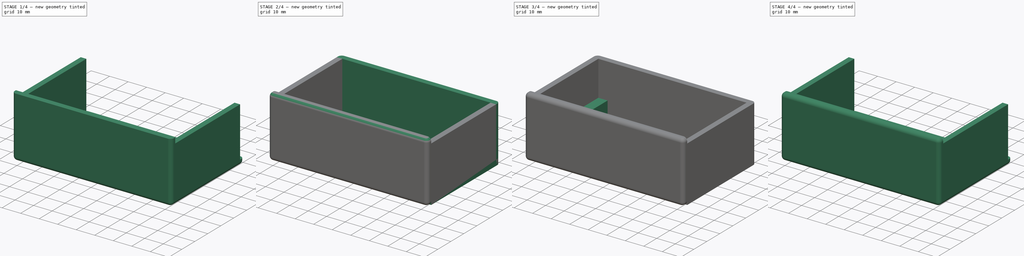
[diagram: build sequence overview — one tinted view per stage of 4, left to right]
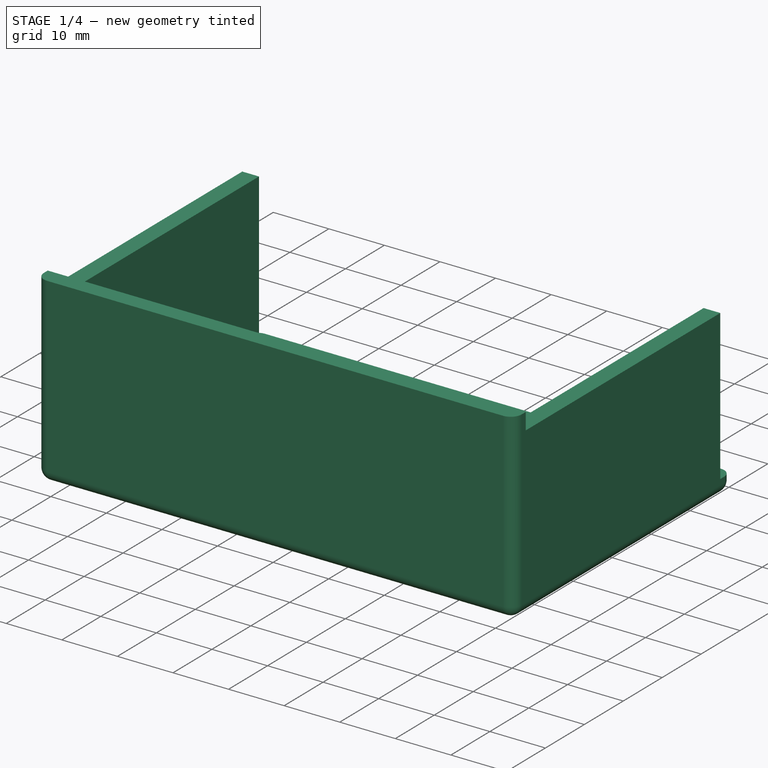
[diagram: stage 1 of 4 — iso view after this stage's code; geometry added in this stage tinted green]
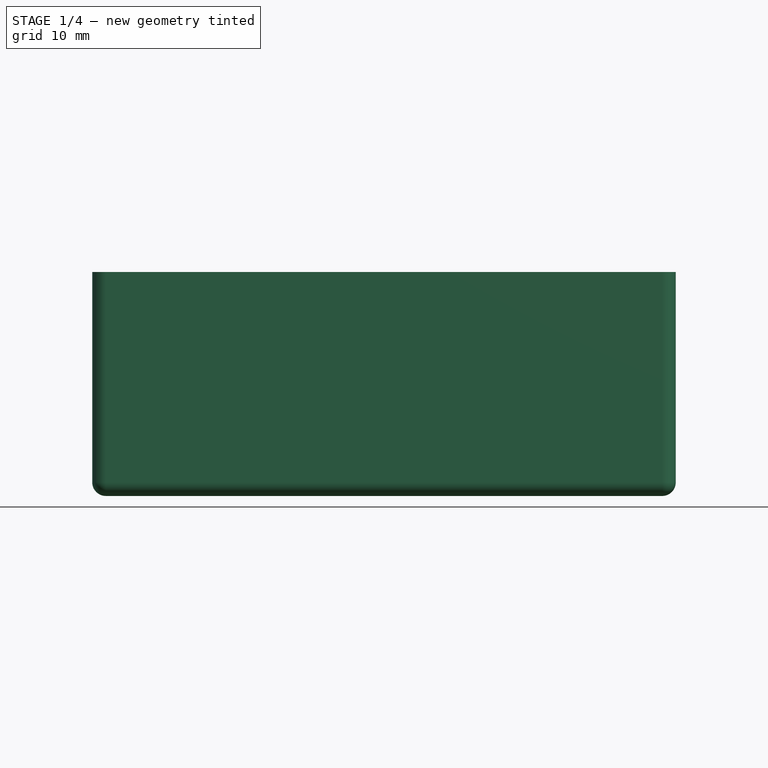
[diagram: stage 1 of 4 — front view after this stage's code; geometry added in this stage tinted green]
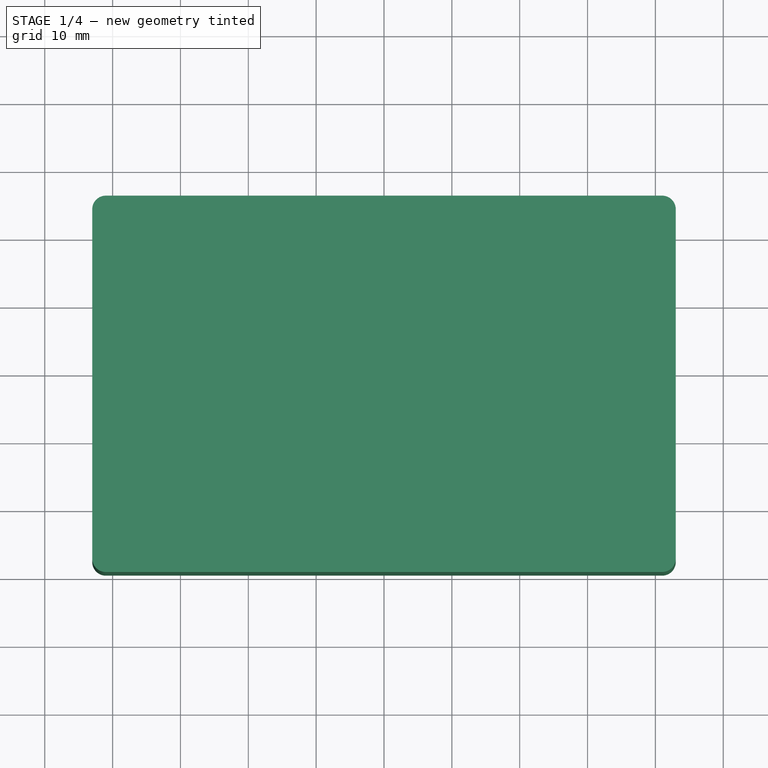
[diagram: stage 1 of 4 — top view after this stage's code; geometry added in this stage tinted green]
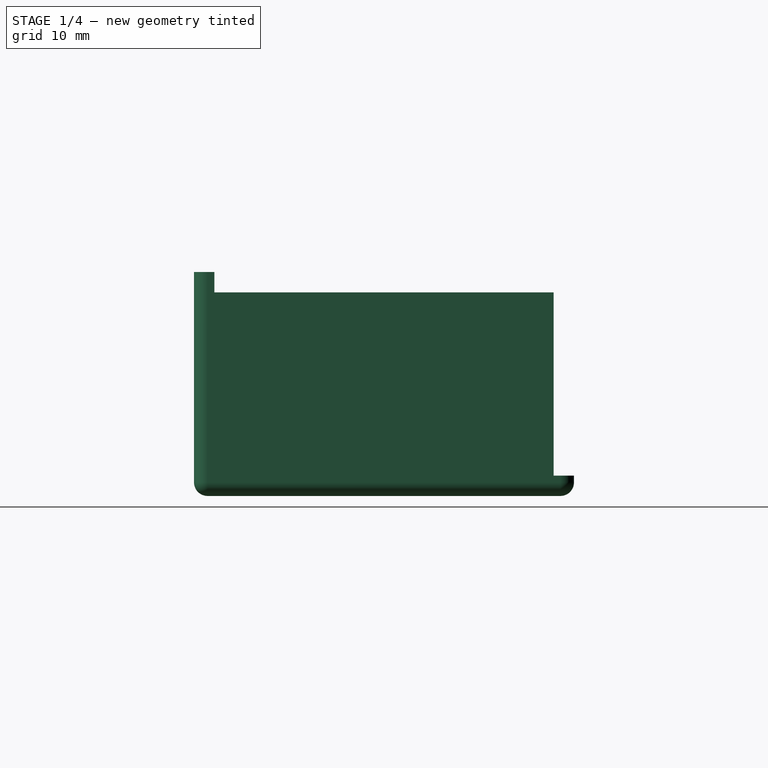
[diagram: stage 1 of 4 — right view after this stage's code; geometry added in this stage tinted green]
FCSTD DOCUMENT  (FreeCAD 0.21R33694 (Git))
Label: FCParametricEnclosure
License: All rights reserved
LicenseURL: https://en.wikipedia.org/wiki/All_rights_reserved
objects: Sketcher::SketchObject×11, PartDesign::Pad×8, PartDesign::Fillet×3, PartDesign::Pocket×2, PartDesign::Body×2, Spreadsheet::Sheet×1, PartDesign::Hole×1, PartDesign::SubShapeBinder×1
note: 42 computed .brp shape members not serialized (recipe doc carries the construction recipe); baked Part::Feature solids carry a one-line shape summary decoded from their .brp

FEATURE [PartDesign::Body] Body  label="Case Bottom"
  Group = -> [Sketch,Pad,Sketch001,Pad001,Sketch002,Pad002,Sketch004,Pad003,Sketch003,Pocket,Sketch005,Pad004,Sketch006,Hole,Fillet]
  Origin = -> Origin
  Tip = -> Fillet
FEATURE [Sketcher::SketchObject] Sketch007
  FullyConstrained = false
  MapMode = 5
  Support = -> [XY_Plane001]
  expr: Constraints[19] = Spreadsheet.case_radius
  expr: Constraints[20] = Spreadsheet.case_length
  expr: Constraints[21] = Spreadsheet.case_width + Spreadsheet.wall_thickness
  sketch-geometry (10):
    g0: ArcOfCircle CenterX=-41 CenterY=24.5 CenterZ=0 NormalX=0 NormalY=0 NormalZ=1 AngleXU=0 Radius=2 StartAngle=1.5708 EndAngle=3.14159
    g1: LineSegment StartX=-41 StartY=26.5 StartZ=0 EndX=41 EndY=26.5 EndZ=0
    g2: ArcOfCircle CenterX=41 CenterY=24.5 CenterZ=0 NormalX=0 NormalY=0 NormalZ=1 AngleXU=0 Radius=2 StartAngle=-4.4e-15 EndAngle=1.5708
    g3: LineSegment StartX=43 StartY=24.5 StartZ=0 EndX=43 EndY=-27.5 EndZ=0
    g4: ArcOfCircle CenterX=41 CenterY=-27.5 CenterZ=0 NormalX=0 NormalY=0 NormalZ=1 AngleXU=0 Radius=2 StartAngle=4.71239 EndAngle=6.28319
    g5: LineSegment StartX=41 StartY=-29.5 StartZ=0 EndX=-41 EndY=-29.5 EndZ=0
    g6: ArcOfCircle CenterX=-41 CenterY=-27.5 CenterZ=0 NormalX=0 NormalY=0 NormalZ=1 AngleXU=0 Radius=2 StartAngle=3.14159 EndAngle=4.71239
    g7: LineSegment StartX=-43 StartY=-27.5 StartZ=0 EndX=-43 EndY=24.5 EndZ=0
    g8: GeomPoint X=-43 Y=26.5 Z=0
    g9: GeomPoint X=43 Y=-29.5 Z=0
  constraints (22):
    c: Tangent(g0,g1) = 1.5708
    c: Tangent(g1,g2) = 1.5708
    c: Tangent(g2,g3) = 1.5708
    c: Tangent(g3,g4) = 1.5708
    c: Tangent(g4,g5) = 1.5708
    c: Tangent(g5,g6) = 1.5708
    c: Tangent(g6,g7) = 1.5708
    c: Tangent(g7,g0) = 1.5708
    c: Horizontal(g1)
    c: Horizontal(g5)
    c: Vertical(g3)
    c: Vertical(g7)
    c: Equal(g0,g2)
    c: Equal(g2,g4)
    c: Equal(g4,g6)
    c: PointOnObject(g8,g1)
    c: PointOnObject(g8,g7)
    c: PointOnObject(g9,g3)
    c: PointOnObject(g9,g5)
    c: Radius(g0) = 2
    c: DistanceX(g0,g2) = 86
    c: DistanceY(g4,g1) = 56
FEATURE [PartDesign::Pad] Pad005  label="Top Base"
  Direction = (0,0,1)
  Length = 3
  Length2 = 10
  Profile = -> Sketch007
  ReferenceAxis = -> Sketch007 [N_Axis]
  Type = 0
  expr: Length = Spreadsheet.wall_thickness
FEATURE [Sketcher::SketchObject] Sketch008
  ExternalGeometry = -> [Pad005]
  FullyConstrained = true
  MapMode = 5
  Placement = pos=(0,0,3) rot=(0,0,1;0rad)
  Support = -> [Pad005]
  expr: Constraints[14] = Spreadsheet.wall_thickness
  sketch-geometry (6):
    g0: LineSegment StartX=-43 StartY=-26.5 StartZ=0 EndX=43 EndY=-26.5 EndZ=0
    g1: LineSegment StartX=43 StartY=-26.5 StartZ=0 EndX=43 EndY=-27.5 EndZ=0
    g2: LineSegment StartX=41 StartY=-29.5 StartZ=0 EndX=-41 EndY=-29.5 EndZ=0
    g3: LineSegment StartX=-43 StartY=-27.5 StartZ=0 EndX=-43 EndY=-26.5 EndZ=0
    g4: ArcOfCircle CenterX=-41 CenterY=-27.5 CenterZ=0 NormalX=0 NormalY=0 NormalZ=1 AngleXU=0 Radius=2 StartAngle=3.14159 EndAngle=4.71239
    g5: ArcOfCircle CenterX=41 CenterY=-27.5 CenterZ=0 NormalX=0 NormalY=0 NormalZ=1 AngleXU=0 Radius=2 StartAngle=4.71239 EndAngle=6.28319
  constraints (15):
    c: Coincident(g0,g1)
    c: Coincident(g3,g0)
    c: Horizontal(g0)
    c: Horizontal(g2)
    c: Vertical(g1)
    c: Vertical(g3)
    c: Tangent(g3,g4) = 1.5708
    c: Tangent(g2,g4) = 1.5708
    c: Tangent(g1,g5) = 1.5708
    c: Tangent(g2,g5) = 1.5708
    c: Equal(g5,g4)
    c: Coincident(g2,g-6)
    c: PointOnObject(g0,g-5)
    c: PointOnObject(g0,g-7)
    c: Distance(g2,g0) = 3
FEATURE [PartDesign::Pad] Pad006  label="Rear Panel"
  BaseFeature = -> Pad005
  Direction = (0,0,1)
  Length = 30
  Length2 = 10
  Profile = -> Sketch008
  ReferenceAxis = -> Sketch008 [N_Axis]
  Type = 0
  expr: Length = Spreadsheet.case_height
FEATURE [Sketcher::SketchObject] Sketch009
  ExternalGeometry = -> [Pad006]
  FullyConstrained = true
  MapMode = 5
  Placement = pos=(0,0,3) rot=(0,0,1;0rad)
  Support = -> [Pad006]
  expr: Constraints[16] = Spreadsheet.wall_thickness
  expr: Constraints[17] = Spreadsheet.wall_thickness
  expr: Constraints[18] = Spreadsheet.board_width
  expr: Constraints[19] = Spreadsheet.board_width
  sketch-geometry (8):
    g0: LineSegment StartX=40 StartY=23.5 StartZ=0 EndX=43 EndY=23.5 EndZ=0
    g1: LineSegment StartX=43 StartY=23.5 StartZ=0 EndX=43 EndY=-26.5 EndZ=0
    g2: LineSegment StartX=43 StartY=-26.5 StartZ=0 EndX=40 EndY=-26.5 EndZ=0
    g3: LineSegment StartX=40 StartY=-26.5 StartZ=0 EndX=40 EndY=23.5 EndZ=0
    g4: LineSegment StartX=-43 StartY=23.5 StartZ=0 EndX=-40 EndY=23.5 EndZ=0
    g5: LineSegment StartX=-40 StartY=23.5 StartZ=0 EndX=-40 EndY=-26.5 EndZ=0
    g6: LineSegment StartX=-40 StartY=-26.5 StartZ=0 EndX=-43 EndY=-26.5 EndZ=0
    g7: LineSegment StartX=-43 StartY=-26.5 StartZ=0 EndX=-43 EndY=23.5 EndZ=0
  constraints (22):
    c: Coincident(g0,g1)
    c: Coincident(g1,g2)
    c: Coincident(g2,g3)
    c: Coincident(g3,g0)
    c: Horizontal(g0)
    c: Horizontal(g2)
    c: Vertical(g1)
    c: Vertical(g3)
    c: Coincident(g4,g5)
    c: Coincident(g5,g6)
    c: Coincident(g6,g7)
    c: Coincident(g7,g4)
    c: Horizontal(g4)
    c: Horizontal(g6)
    c: Vertical(g5)
    c: Vertical(g7)
    c: DistanceX(g6,g5) = 3
    c: DistanceX(g2,g1) = 3
    c: DistanceY(g2,g0) = 50
    c: DistanceY(g5,g4) = 50
    c: Coincident(g1,g-3)
    c: Coincident(g6,g-4)
FEATURE [PartDesign::Pad] Pad007  label="Side Walls"
  BaseFeature = -> Pad006
  Direction = (0,0,1)
  Length = 27
  Length2 = 10
  Profile = -> Sketch009
  ReferenceAxis = -> Sketch009 [N_Axis]
  Type = 0
  expr: Length = Spreadsheet.case_height - Spreadsheet.wall_thickness
FEATURE [PartDesign::Fillet] Fillet001
  Base = -> Pad007 [Face4]
  BaseFeature = -> Pad007
  Radius = 2
  SupportTransform = false
  UseAllEdges = false
  expr: Radius = Spreadsheet.case_fillet_radius
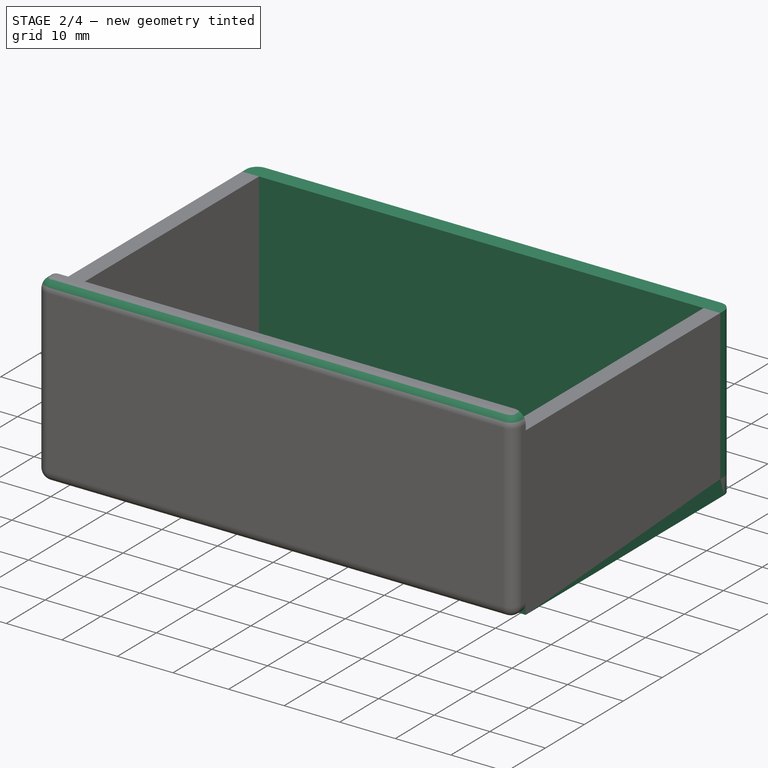
[diagram: stage 2 of 4 — iso view after this stage's code; geometry added in this stage tinted green]
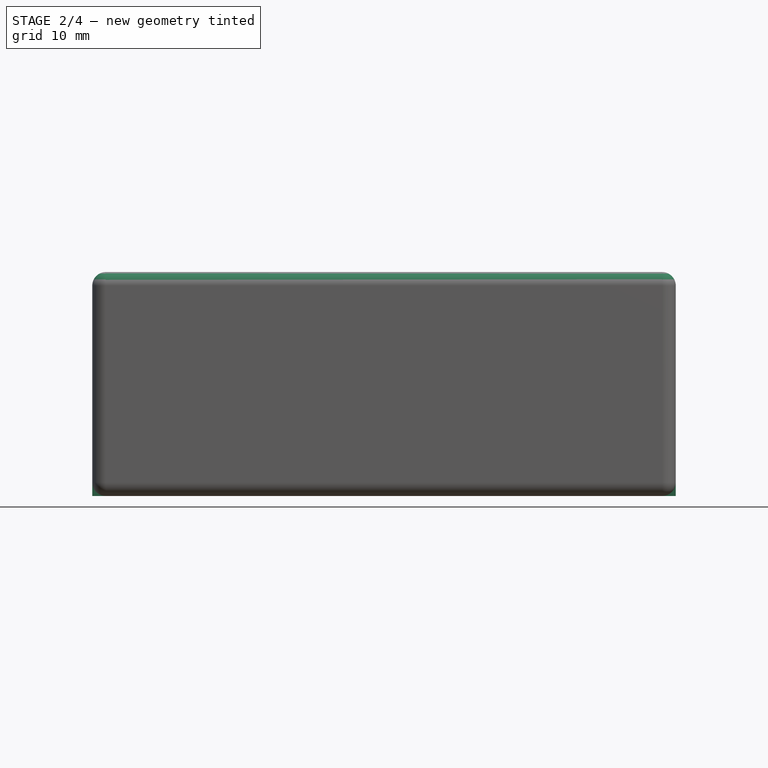
[diagram: stage 2 of 4 — front view after this stage's code; geometry added in this stage tinted green]
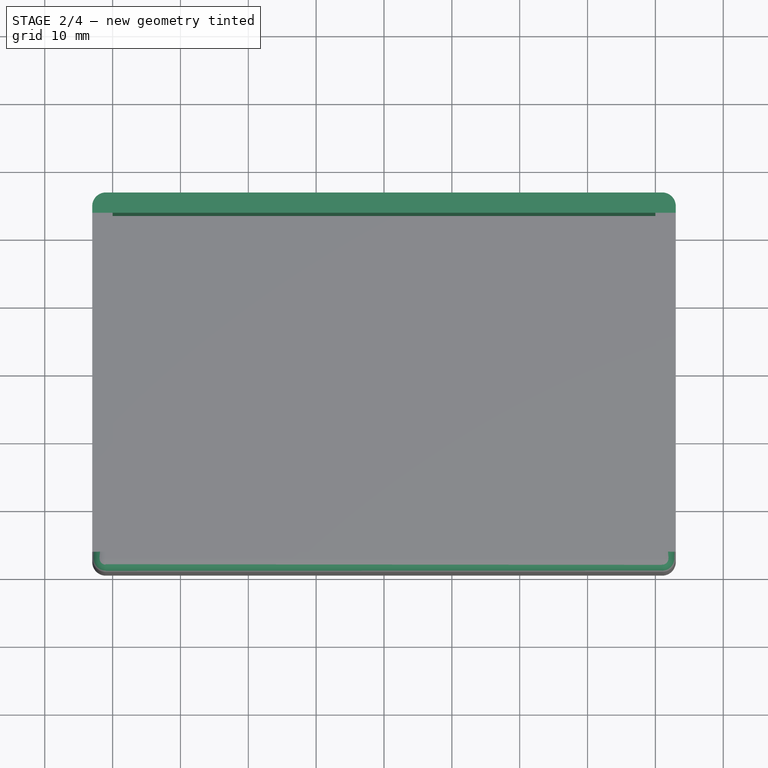
[diagram: stage 2 of 4 — top view after this stage's code; geometry added in this stage tinted green]
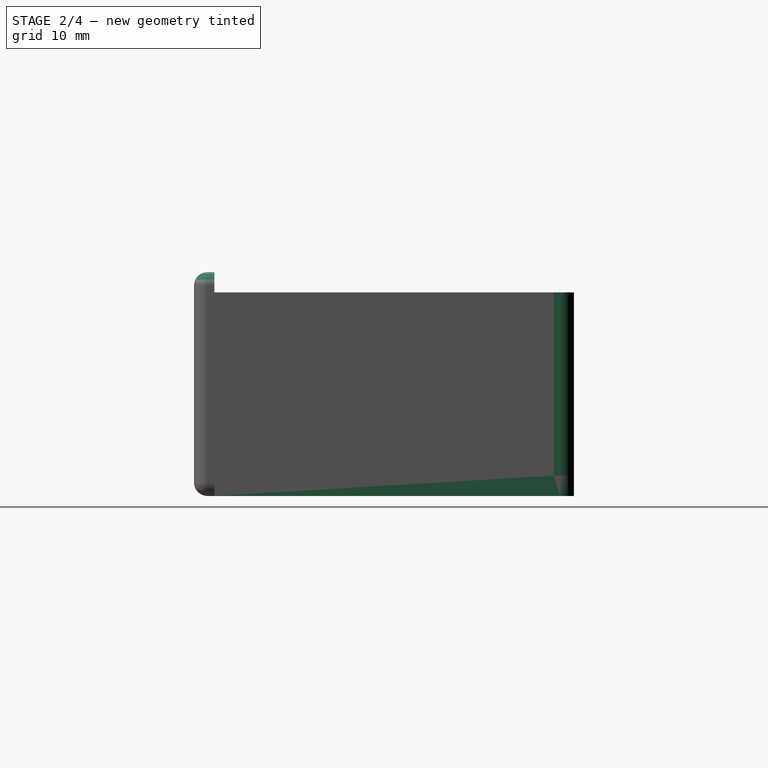
[diagram: stage 2 of 4 — right view after this stage's code; geometry added in this stage tinted green]
FEATURE [Sketcher::SketchObject] Sketch
  FullyConstrained = true
  MapMode = 5
  Support = -> [XY_Plane]
  expr: Constraints[10] = Spreadsheet.case_width
  expr: Constraints[24] = Spreadsheet.case_radius
  expr: Constraints[9] = Spreadsheet.case_length
  sketch-geometry (11):
    g0: LineSegment StartX=-43 StartY=26.5 StartZ=0 EndX=43 EndY=26.5 EndZ=0
    g1: LineSegment StartX=43 StartY=26.5 StartZ=0 EndX=43 EndY=-26.5 EndZ=0
    g2: LineSegment StartX=43 StartY=-26.5 StartZ=0 EndX=-43 EndY=-26.5 EndZ=0
    g3: LineSegment StartX=-43 StartY=-26.5 StartZ=0 EndX=-43 EndY=26.5 EndZ=0
    g4: ArcOfCircle CenterX=-41 CenterY=24.5 CenterZ=0 NormalX=0 NormalY=0 NormalZ=1 AngleXU=0 Radius=2 StartAngle=1.5708 EndAngle=3.14159
    g5: LineSegment StartX=-41 StartY=26.5 StartZ=0 EndX=41 EndY=26.5 EndZ=0
    g6: ArcOfCircle CenterX=41 CenterY=24.5 CenterZ=0 NormalX=0 NormalY=0 NormalZ=1 AngleXU=0 Radius=2 StartAngle=-1.35021e-11 EndAngle=1.5708
    g7: LineSegment StartX=43 StartY=24.5 StartZ=0 EndX=43 EndY=-26.5 EndZ=0
    g8: LineSegment StartX=43 StartY=-26.5 StartZ=0 EndX=-43 EndY=-26.5 EndZ=0
    g9: LineSegment StartX=-43 StartY=-26.5 StartZ=0 EndX=-43 EndY=24.5 EndZ=0
    g10: GeomPoint X=-43 Y=26.5 Z=0
  constraints (28):
    c: Coincident(g0,g1)
    c: Coincident(g1,g2)
    c: Coincident(g2,g3)
    c: Coincident(g3,g0)
    c: Horizontal(g0)
    c: Horizontal(g2)
    c: Vertical(g1)
    c: Vertical(g3)
    c: Symmetric(g2,g0,g-1)
    c: DistanceX(g0,g0) = 86
    c: DistanceY(g2,g0) = 53
    c: Tangent(g4,g5) = 1.5708
    c: Tangent(g5,g6) = 1.5708
    c: Tangent(g6,g7) = 1.5708
    c: Tangent(g9,g4) = 1.5708
    c: Horizontal(g5)
    c: Horizontal(g8)
    c: Vertical(g7)
    c: Vertical(g9)
    c: Equal(g4,g6)
    c: PointOnObject(g10,g5)
    c: PointOnObject(g10,g9)
    c: Coincident(g7,g8)
    c: Coincident(g8,g9)
    c: Radius(g6) = 2
    c: Coincident(g8,g2)
    c: PointOnObject(g5,g0)
    c: PointOnObject(g7,g1)
FEATURE [Spreadsheet::Sheet] Spreadsheet
  cells = A1='board_length; B1(board_length)=70; A2='board_width; B2(board_width)=50; A3='case_height; B3(case_height)=30; A4='wall_thickness; B4(wall_thickness)=3; A5='board_mount_inset; B5(board_mount_inset)=5; A6='case_radius; B6(case_radius)=2; A7='mount_hole_diameter; B7(mount_hole_diameter)=4; A8='mount_hole_depth; B8(mount_hole_depth)=5; A9='case_hole_diameter; B9(case_hole_diameter)=4; A10='case_hole_depth; B10(case_hole_depth)=5; A11='mount_stud_height; B11(mount_stud_height)=8; A12='case_clearance_hole; B12(case_clearance_hole)=3.5; A14='case_length; B14(case_length)==board_length + (wall_thickness + case_lip_thickness) * 2; A15='case_width; B15(case_width)==board_width + wall_thickness; A16='case_lip_height; B16(case_lip_height)==case_hole_diameter + 4; A17='case_lip_thickness; B17(case_lip_thickness)==case_hole_depth; A18='mount_stud_diameter; B18(mount_stud_diameter)==mount_hole_diameter + 3; A19='case_fillet_radius; B19(case_fillet_radius)==case_radius
FEATURE [PartDesign::Pad] Pad  label="Bottom Base"
  Direction = (0,0,1)
  Length = 3
  Length2 = 10
  Profile = -> Sketch
  ReferenceAxis = -> Sketch [N_Axis]
  Type = 0
  expr: Length = Spreadsheet.wall_thickness
FEATURE [Sketcher::SketchObject] Sketch001
  ExternalGeometry = -> [Pad]
  FullyConstrained = true
  MapMode = 5
  Placement = pos=(0,0,3) rot=(0,0,1;0rad)
  Support = -> [Pad]
  expr: Constraints[13] = Spreadsheet.case_radius
  expr: Constraints[15] = Spreadsheet.wall_thickness
  sketch-geometry (6):
    g0: LineSegment StartX=-41 StartY=26.5 StartZ=0 EndX=41 EndY=26.5 EndZ=0
    g1: LineSegment StartX=43 StartY=24.5 StartZ=0 EndX=43 EndY=23.5 EndZ=0
    g2: LineSegment StartX=43 StartY=23.5 StartZ=0 EndX=-43 EndY=23.5 EndZ=0
    g3: LineSegment StartX=-43 StartY=23.5 StartZ=0 EndX=-43 EndY=24.5 EndZ=0
    g4: ArcOfCircle CenterX=-41 CenterY=24.5 CenterZ=0 NormalX=0 NormalY=0 NormalZ=1 AngleXU=0 Radius=2 StartAngle=1.5708 EndAngle=3.14159
    g5: ArcOfCircle CenterX=41 CenterY=24.5 CenterZ=0 NormalX=0 NormalY=0 NormalZ=1 AngleXU=0 Radius=2 StartAngle=1.4e-15 EndAngle=1.5708
  constraints (16):
    c: Coincident(g1,g2)
    c: Coincident(g2,g3)
    c: Horizontal(g0)
    c: Horizontal(g2)
    c: Vertical(g1)
    c: Vertical(g3)
    c: Tangent(g3,g4) = 1.5708
    c: Tangent(g0,g4) = 1.5708
    c: Tangent(g1,g5) = 1.5708
    c: Tangent(g0,g5) = 1.5708
    c: PointOnObject(g2,g-5)
    c: PointOnObject(g1,g-7)
    c: Equal(g4,g5)
    c: Radius(g5) = 2
    c: PointOnObject(g0,g-3)
    c: DistanceY(g1,g0) = 3
FEATURE [PartDesign::Pad] Pad001  label="Front Panel"
  BaseFeature = -> Pad
  Direction = (0,0,1)
  Length = 27
  Length2 = 10
  Profile = -> Sketch001
  ReferenceAxis = -> Sketch001 [N_Axis]
  Type = 0
  expr: Length = Spreadsheet.case_height - Spreadsheet.wall_thickness
FEATURE [PartDesign::SubShapeBinder] Binder
  BindCopyOnChange = 0
  BindMode = 0
  ClaimChildren = false
  Context = -> Body001 [Binder.]
  Fuse = false
  MakeFace = true
  OffsetFill = false
  OffsetIntersection = false
  OffsetJoinType = 0
  OffsetOpenResult = false
  PartialLoad = false
  Relative = true
  Support = -> [Body[Fillet.]]
  _Version = 2
FEATURE [PartDesign::Fillet] Fillet002
  Base = -> Fillet001 [Edge68,Edge69,Edge70,Edge71,Edge53]
  BaseFeature = -> Fillet001
  Radius = 2
  SupportTransform = false
  UseAllEdges = false
  expr: Radius = Spreadsheet.case_fillet_radius
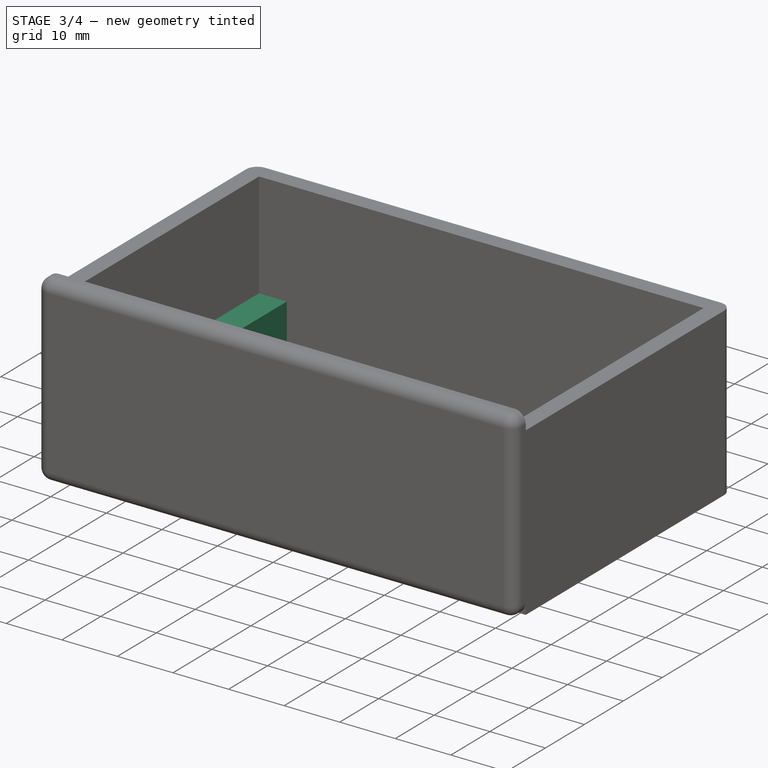
[diagram: stage 3 of 4 — iso view after this stage's code; geometry added in this stage tinted green]
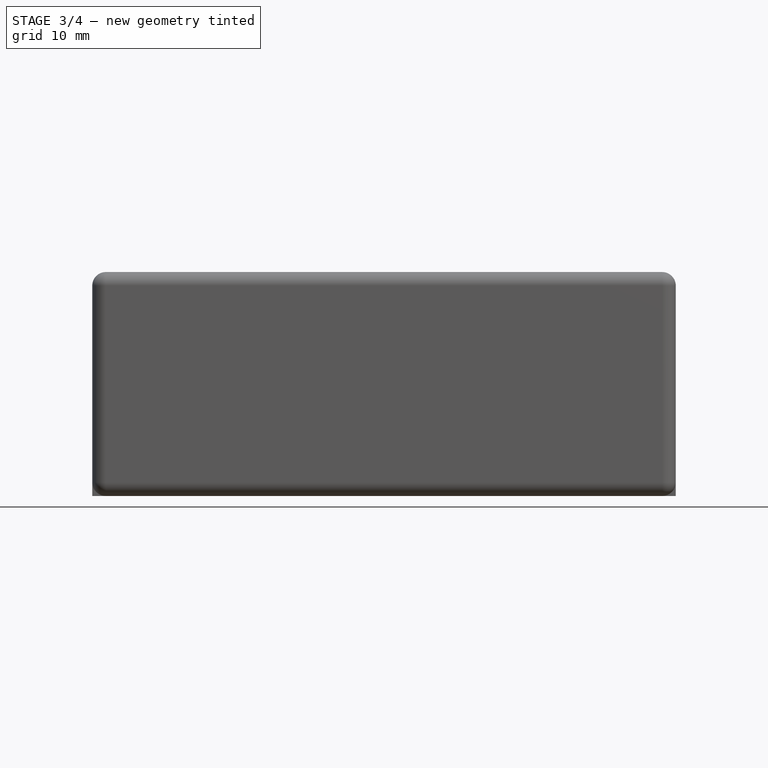
[diagram: stage 3 of 4 — front view after this stage's code; geometry added in this stage tinted green]
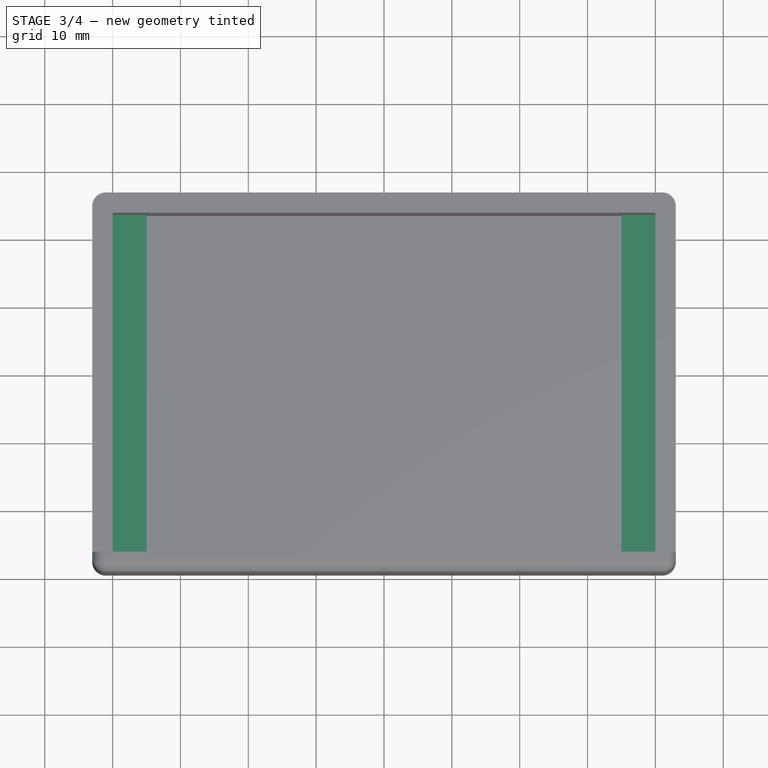
[diagram: stage 3 of 4 — top view after this stage's code; geometry added in this stage tinted green]
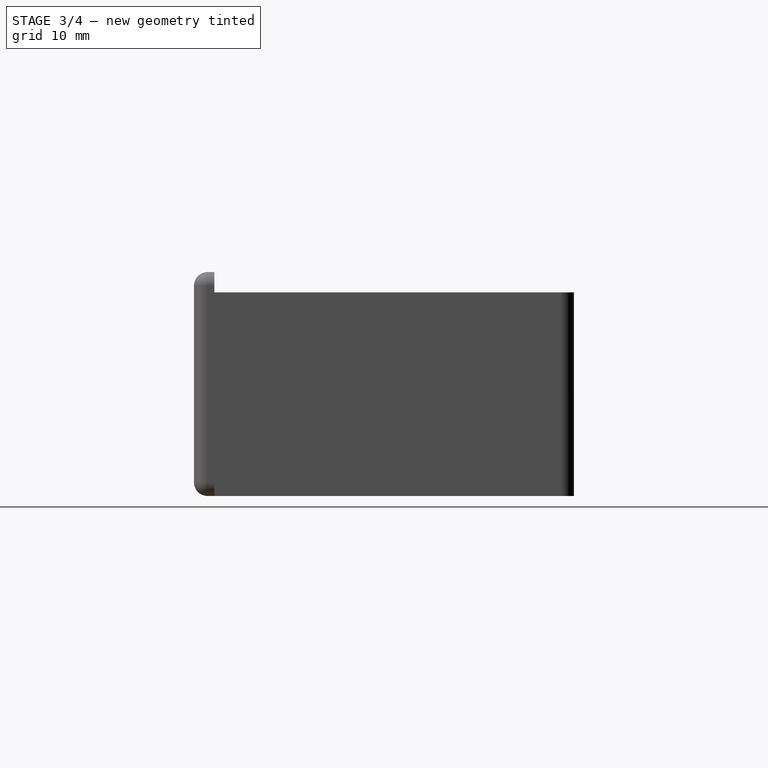
[diagram: stage 3 of 4 — right view after this stage's code; geometry added in this stage tinted green]
FEATURE [Sketcher::SketchObject] Sketch002
  ExternalGeometry = -> [Pad001]
  FullyConstrained = true
  MapMode = 5
  Placement = pos=(0,0,3) rot=(0,0,1;0rad)
  Support = -> [Pad001]
  expr: Constraints[10] = Spreadsheet.wall_thickness
  expr: Constraints[11] = Spreadsheet.case_width - Spreadsheet.wall_thickness
  expr: Constraints[9] = Spreadsheet.case_lip_thickness
  sketch-geometry (4):
    g0: LineSegment StartX=-40 StartY=-26.5 StartZ=0 EndX=-35 EndY=-26.5 EndZ=0
    g1: LineSegment StartX=-35 StartY=-26.5 StartZ=0 EndX=-35 EndY=23.5 EndZ=0
    g2: LineSegment StartX=-35 StartY=23.5 StartZ=0 EndX=-40 EndY=23.5 EndZ=0
    g3: LineSegment StartX=-40 StartY=23.5 StartZ=0 EndX=-40 EndY=-26.5 EndZ=0
  constraints (12):
    c: Coincident(g0,g1)
    c: Coincident(g1,g2)
    c: Coincident(g2,g3)
    c: Coincident(g3,g0)
    c: Horizontal(g0)
    c: Horizontal(g2)
    c: Vertical(g1)
    c: Vertical(g3)
    c: PointOnObject(g0,g-3)
    c: DistanceX(g0,g0) = 5
    c: DistanceX(g-4,g0) = 3
    c: DistanceY(g0,g2) = 50
FEATURE [PartDesign::Pad] Pad002  label="Right Case Lip"
  BaseFeature = -> Pad001
  Direction = (0,0,1)
  Length = 8
  Length2 = 10
  Profile = -> Sketch002
  ReferenceAxis = -> Sketch002 [N_Axis]
  Type = 0
  expr: Length = Spreadsheet.case_lip_height
FEATURE [Sketcher::SketchObject] Sketch003
  ExternalGeometry = -> [Pad002]
  FullyConstrained = true
  MapMode = 5
  Placement = pos=(-40,0,0) rot=(0.57735,-0.57735,-0.57735;2.0944rad)
  Support = -> [Pad002]
  expr: Constraints[1] = Spreadsheet.mount_hole_diameter
  expr: Constraints[2] = Spreadsheet.case_lip_height / 2
  sketch-geometry (1):
    g0: Circle CenterX=0 CenterY=7 CenterZ=0 NormalX=0 NormalY=0 NormalZ=1 AngleXU=0 Radius=2
  constraints (3):
    c: PointOnObject(g0,g-2)
    c: Diameter(g0) = 4
    c: Distance(g0,g-3) = 4
FEATURE [Sketcher::SketchObject] Sketch004
  ExternalGeometry = -> [Pad002]
  FullyConstrained = true
  MapMode = 5
  Placement = pos=(0,0,3) rot=(0,0,1;0rad)
  Support = -> [Pad002]
  expr: Constraints[10] = Spreadsheet.wall_thickness
  expr: Constraints[11] = Spreadsheet.case_width - Spreadsheet.wall_thickness
  expr: Constraints[9] = Spreadsheet.case_lip_thickness
  sketch-geometry (4):
    g0: LineSegment StartX=35 StartY=-26.5 StartZ=0 EndX=40 EndY=-26.5 EndZ=0
    g1: LineSegment StartX=40 StartY=-26.5 StartZ=0 EndX=40 EndY=23.5 EndZ=0
    g2: LineSegment StartX=40 StartY=23.5 StartZ=0 EndX=35 EndY=23.5 EndZ=0
    g3: LineSegment StartX=35 StartY=23.5 StartZ=0 EndX=35 EndY=-26.5 EndZ=0
  constraints (12):
    c: Coincident(g0,g1)
    c: Coincident(g1,g2)
    c: Coincident(g2,g3)
    c: Coincident(g3,g0)
    c: Horizontal(g0)
    c: Horizontal(g2)
    c: Vertical(g1)
    c: Vertical(g3)
    c: PointOnObject(g0,g-3)
    c: DistanceX(g0,g0) = 5
    c: DistanceX(g0,g-4) = 3
    c: DistanceY(g0,g2) = 50
FEATURE [PartDesign::Pad] Pad003  label="Left Case Lip"
  BaseFeature = -> Pad002
  Direction = (0,0,1)
  Length = 8
  Length2 = 10
  Profile = -> Sketch004
  ReferenceAxis = -> Sketch004 [N_Axis]
  Type = 0
  expr: Length = Spreadsheet.case_lip_height
FEATURE [PartDesign::Pocket] Pocket  label="Case Mount Holes"
  BaseFeature = -> Pad003
  Direction = (1,0,0)
  Length = 5
  Length2 = 5
  Profile = -> Sketch003
  ReferenceAxis = -> Sketch003 [N_Axis]
  Type = 1
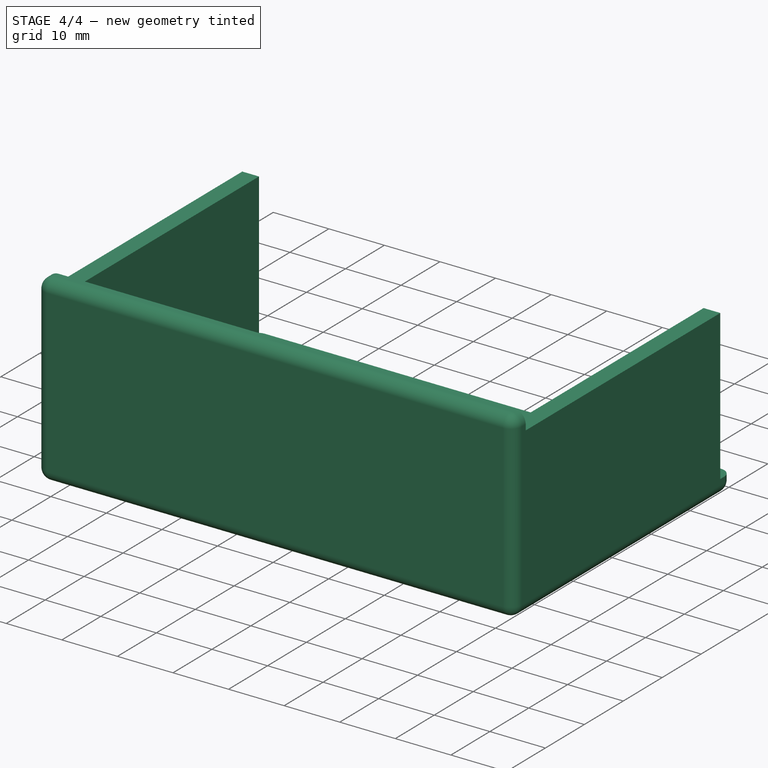
[diagram: stage 4 of 4 — iso view after this stage's code; geometry added in this stage tinted green]
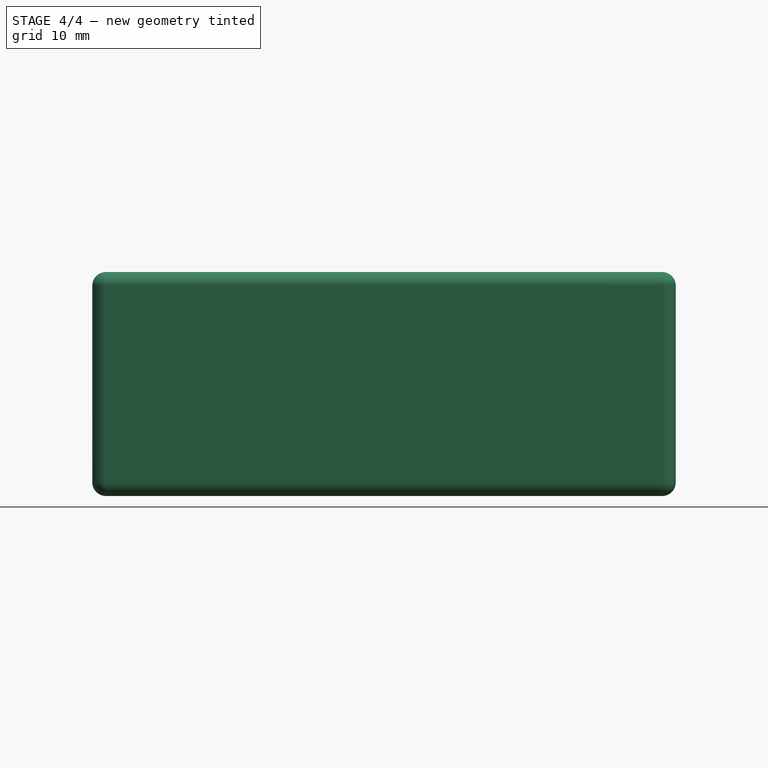
[diagram: stage 4 of 4 — front view after this stage's code; geometry added in this stage tinted green]
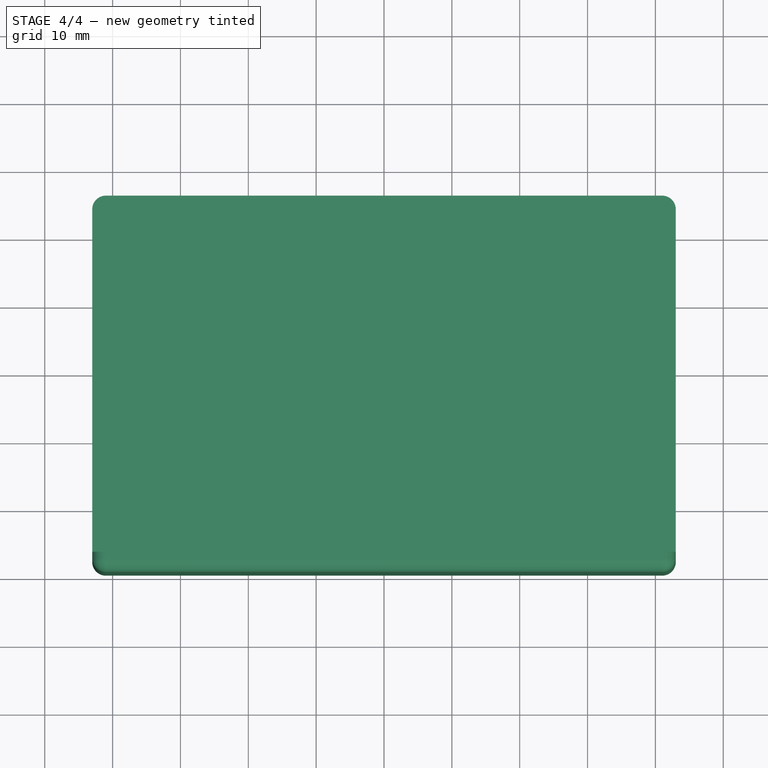
[diagram: stage 4 of 4 — top view after this stage's code; geometry added in this stage tinted green]
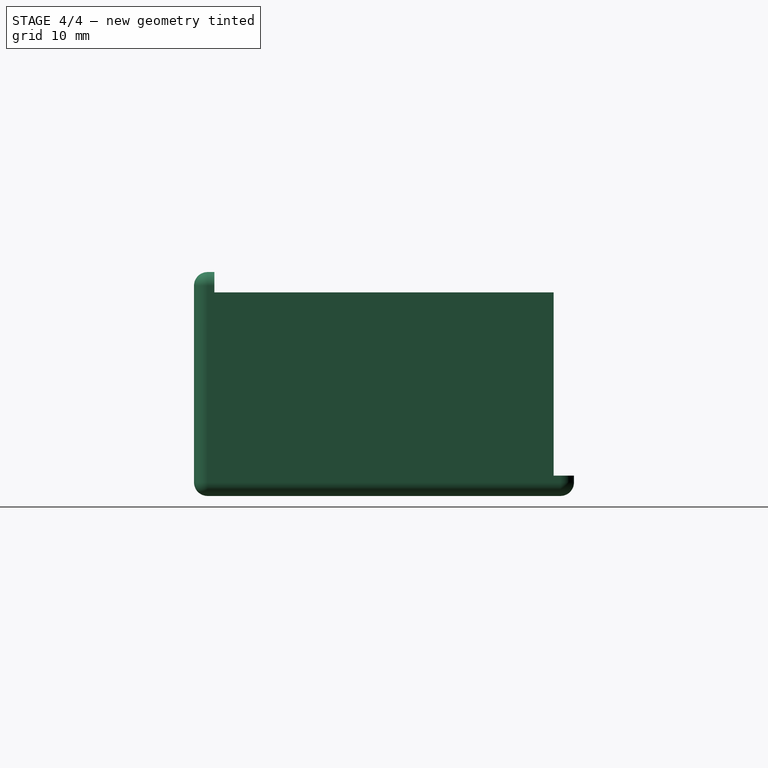
[diagram: stage 4 of 4 — right view after this stage's code; geometry added in this stage tinted green]
FEATURE [Sketcher::SketchObject] Sketch005
  ExternalGeometry = -> [Pocket]
  FullyConstrained = true
  MapMode = 5
  Placement = pos=(0,0,3) rot=(0,0,1;0rad)
  Support = -> [Pocket]
  expr: Constraints[0] = Spreadsheet.wall_thickness + Spreadsheet.case_lip_thickness + Spreadsheet.board_mount_inset
  expr: Constraints[11] = Spreadsheet.mount_stud_diameter
  expr: Constraints[1] = Spreadsheet.wall_thickness + Spreadsheet.case_lip_thickness + Spreadsheet.board_mount_inset
  expr: Constraints[2] = Spreadsheet.wall_thickness + Spreadsheet.case_lip_thickness + Spreadsheet.board_mount_inset
  expr: Constraints[3] = Spreadsheet.wall_thickness + Spreadsheet.case_lip_thickness + Spreadsheet.board_mount_inset
  expr: Constraints[4] = Spreadsheet.wall_thickness + Spreadsheet.board_mount_inset
  expr: Constraints[5] = Spreadsheet.wall_thickness + Spreadsheet.board_mount_inset
  expr: Constraints[6] = Spreadsheet.board_mount_inset
  expr: Constraints[7] = Spreadsheet.board_mount_inset
  sketch-geometry (4):
    g0: Circle CenterX=-30 CenterY=18.5 CenterZ=0 NormalX=0 NormalY=0 NormalZ=1 AngleXU=0 Radius=3.5
    g1: Circle CenterX=30 CenterY=18.5 CenterZ=0 NormalX=0 NormalY=0 NormalZ=1 AngleXU=0 Radius=3.5
    g2: Circle CenterX=-30 CenterY=-21.5 CenterZ=0 NormalX=0 NormalY=0 NormalZ=1 AngleXU=0 Radius=3.5
    g3: Circle CenterX=30 CenterY=-21.5 CenterZ=0 NormalX=0 NormalY=0 NormalZ=1 AngleXU=0 Radius=3.5
  constraints (12):
    c: Distance(g0,g-4) = 13
    c: Distance(g1,g-6) = 13
    c: Distance(g3,g-6) = 13
    c: Distance(g2,g-4) = 13
    c: Distance(g0,g-3) = 8
    c: Distance(g1,g-3) = 8
    c: Distance(g2,g-5) = 5
    c: Distance(g3,g-5) = 5
    c: Equal(g0,g1)
    c: Equal(g1,g3)
    c: Equal(g3,g2)
    c: Diameter(g0) = 7
FEATURE [PartDesign::Pad] Pad004  label="Board Mount Studs"
  BaseFeature = -> Pocket
  Direction = (0,0,1)
  Length = 8
  Length2 = 10
  Profile = -> Sketch005
  ReferenceAxis = -> Sketch005 [N_Axis]
  Type = 0
  expr: Length = Spreadsheet.mount_stud_height
FEATURE [Sketcher::SketchObject] Sketch006
  ExternalGeometry = -> [Pad004]
  FullyConstrained = true
  MapMode = 5
  Placement = pos=(0,0,11) rot=(0,0,1;0rad)
  Support = -> [Pad004]
  expr: Constraints[7] = Spreadsheet.mount_hole_diameter
  sketch-geometry (4):
    g0: Circle CenterX=-30 CenterY=18.5 CenterZ=0 NormalX=0 NormalY=0 NormalZ=1 AngleXU=0 Radius=2
    g1: Circle CenterX=-30 CenterY=-21.5 CenterZ=0 NormalX=0 NormalY=0 NormalZ=1 AngleXU=0 Radius=2
    g2: Circle CenterX=30 CenterY=-21.5 CenterZ=0 NormalX=0 NormalY=0 NormalZ=1 AngleXU=0 Radius=2
    g3: Circle CenterX=30 CenterY=18.5 CenterZ=0 NormalX=0 NormalY=0 NormalZ=1 AngleXU=0 Radius=2
  constraints (8):
    c: Coincident(g0,g-3)
    c: Coincident(g1,g-4)
    c: Coincident(g2,g-5)
    c: Coincident(g3,g-6)
    c: Equal(g0,g3)
    c: Equal(g3,g2)
    c: Equal(g2,g1)
    c: Diameter(g0) = 4
FEATURE [PartDesign::Hole] Hole  label="Board Mount Holes"
  BaseFeature = -> Pad004
  CustomThreadClearance = 0
  Depth = 5
  DepthType = 0
  Diameter = 4
  DrillForDepth = false
  DrillPoint = 1
  DrillPointAngle = 118
  HoleCutCountersinkAngle = 90
  HoleCutCustomValues = false
  HoleCutDepth = 0
  HoleCutDiameter = 6.1
  HoleCutType = 0
  ModelThread = false
  Profile = -> Sketch006
  Tapered = false
  TaperedAngle = 90
  ThreadClass = 0
  ThreadDepth = 5
  ThreadDepthType = 0
  ThreadDirection = 0
  ThreadFit = 0
  ThreadSize = 0
  ThreadType = 0
  Threaded = false
  UseCustomThreadClearance = false
  expr: Depth = Spreadsheet.mount_hole_depth
  expr: Diameter = Spreadsheet.mount_hole_diameter
FEATURE [PartDesign::Fillet] Fillet
  Base = -> Hole [Edge13,Edge14,Edge6,Edge3,Edge9]
  BaseFeature = -> Hole
  Radius = 2
  SupportTransform = false
  UseAllEdges = false
  expr: Radius = Spreadsheet.case_fillet_radius
FEATURE [Sketcher::SketchObject] Sketch010
  ExternalGeometry = -> [Binder]
  FullyConstrained = true
  MapMode = 5
  Placement = pos=(-43,0,0) rot=(0.57735,-0.57735,-0.57735;2.0944rad)
  Support = -> [Fillet002]
  expr: Constraints[1] = Spreadsheet.case_clearance_hole
  expr: Constraints[2] = Spreadsheet.case_lip_height / 2
  sketch-geometry (1):
    g0: Circle CenterX=0 CenterY=34 CenterZ=0 NormalX=0 NormalY=0 NormalZ=1 AngleXU=0 Radius=1.75
  constraints (3):
    c: PointOnObject(g0,g-2)
    c: Diameter(g0) = 3.5
    c: Distance(g0,g-3) = 4
FEATURE [PartDesign::Pocket] Pocket001
  BaseFeature = -> Fillet002
  Direction = (1,0,0)
  Length = 5
  Length2 = 5
  Profile = -> Sketch010
  ReferenceAxis = -> Sketch010 [N_Axis]
  Type = 1
FEATURE [PartDesign::Body] Body001  label="Case Top"
  Group = -> [Sketch007,Pad005,Sketch008,Pad006,Sketch009,Pad007,Fillet001,Binder,Fillet002,Sketch010,Pocket001]
  Origin = -> Origin001
  Placement = pos=(0,0,33) rot=(0,1,0;3.14159rad)
  Tip = -> Pocket001
  expr: .Placement.Base.z = Spreadsheet.case_height + Spreadsheet.wall_thickness
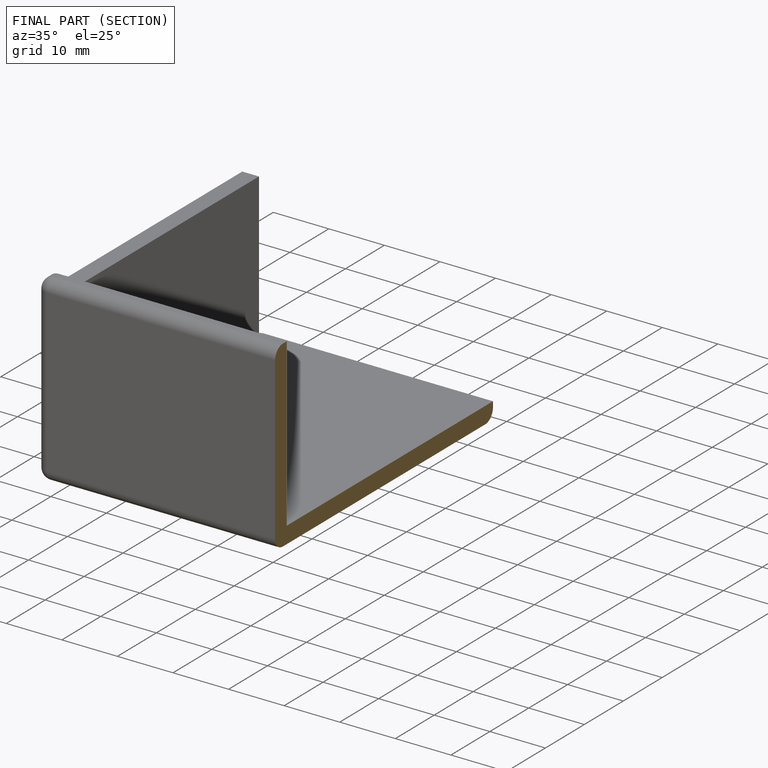
[diagram: finished part — half-section view (interior)]
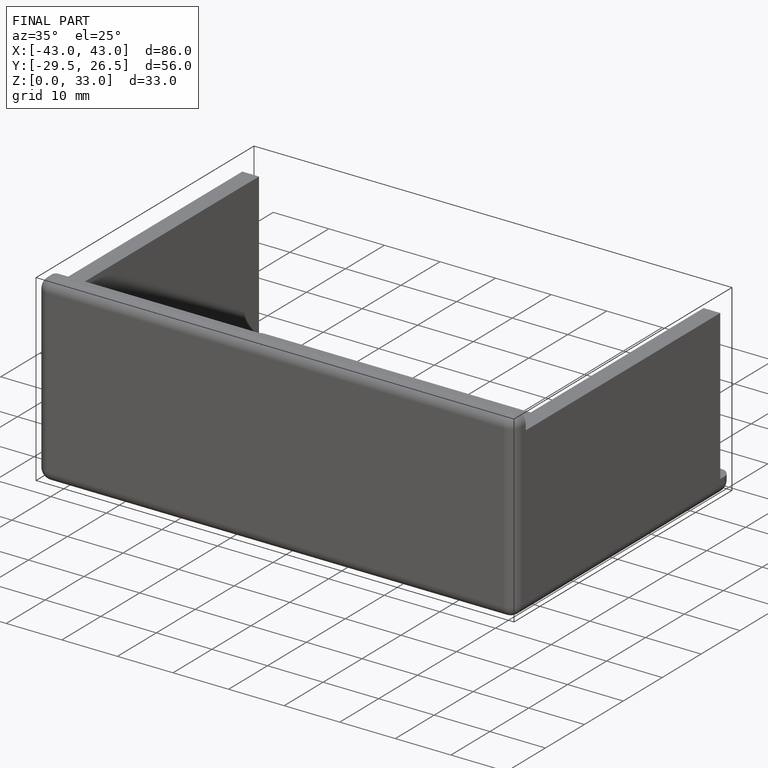
[diagram: finished part — iso view with bounding-box wireframe]
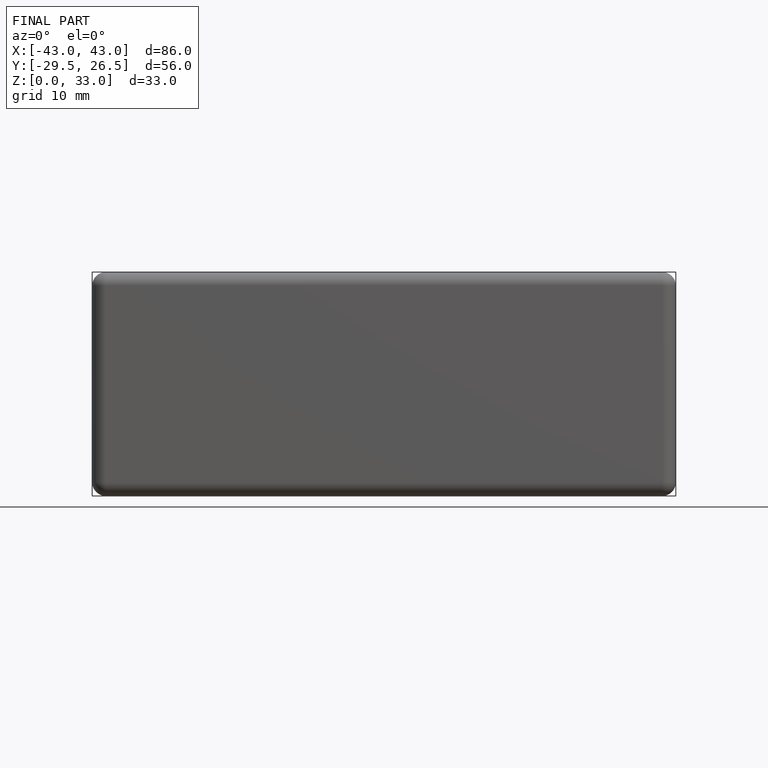
[diagram: finished part — front view with bounding-box wireframe]
